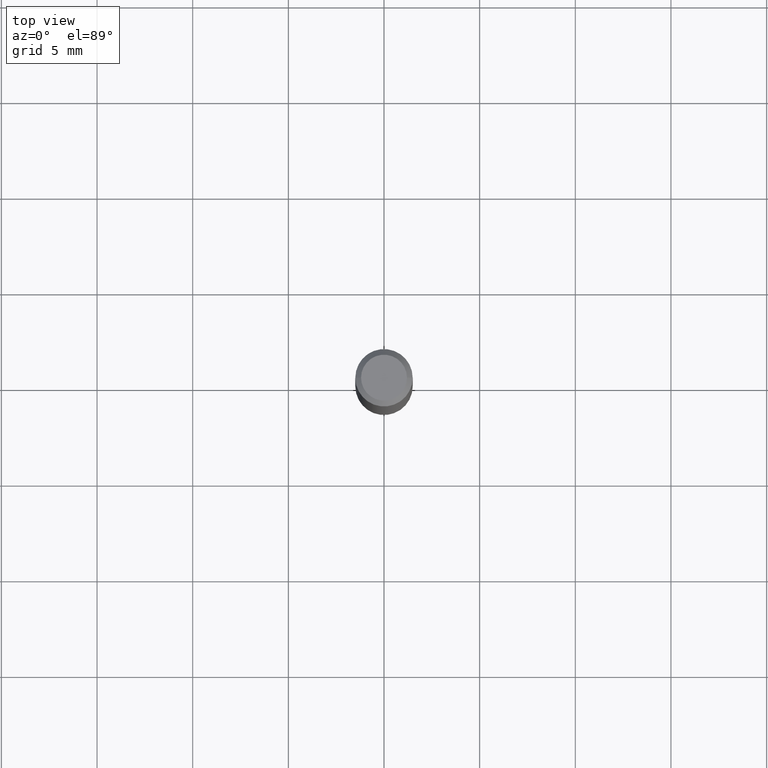
[diagram: clean part render]
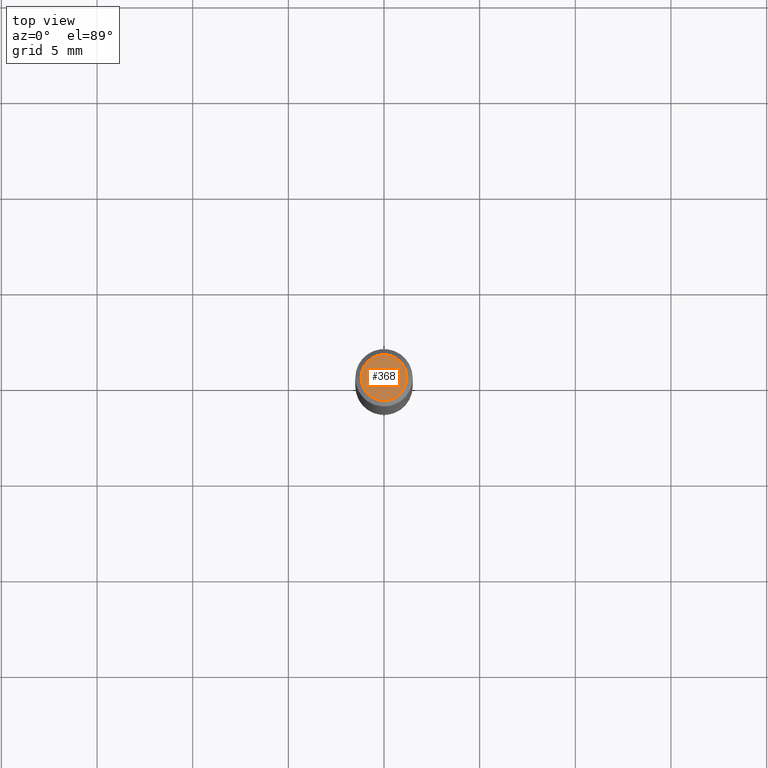
[diagram: same view with one face highlighted and labeled with its STEP entity id]
A machine part, top view. The second image highlights one B-rep face of the part: STEP entity #368.
In plain terms, the highlighted planar face has unit normal (0, -0, -1).
Its self-contained STEP definition (entity closure, byte-faithful):
#9 = DIRECTION ( 'NONE',  ( -1.000000000000000000, 6.982962677686265922E-15, -4.876176775795935793E-29 ) ) ;
#41 = CIRCLE ( 'NONE', #359, 0.04724000000000000421 ) ;
#116 = EDGE_LOOP ( 'NONE', ( #474, #483 ) ) ;
#140 = DIRECTION ( 'NONE',  ( -2.445468806185136597E-29, 3.491481338843145583E-15, 1.000000000000000000 ) ) ;
#144 = DIRECTION ( 'NONE',  ( -2.445468806185136597E-29, 3.491481338843145583E-15, 1.000000000000000000 ) ) ;
#145 = AXIS2_PLACEMENT_3D ( 'NONE', #364, #144, #242 ) ;
#175 = CARTESIAN_POINT ( 'NONE',  ( 8.265746106709734507E-48, -1.180129479067563789E-33, -3.380025165646692144E-19 ) ) ;
#190 = EDGE_CURVE ( 'NONE', #367, #481, #41, .T. ) ;
#202 = AXIS2_PLACEMENT_3D ( 'NONE', #386, #431, #9 ) ;
#236 = EDGE_CURVE ( 'NONE', #481, #367, #412, .T. ) ;
#242 = DIRECTION ( 'NONE',  ( 1.000000000000000000, -6.982962677686266711E-15, 4.876185090822587894E-29 ) ) ;
#315 = CARTESIAN_POINT ( 'NONE',  ( -0.04724000000000000421, 3.504923541997677355E-16, -3.380025165670481712E-19 ) ) ;
#341 = FACE_OUTER_BOUND ( 'NONE', #116, .T. ) ;
#359 = AXIS2_PLACEMENT_3D ( 'NONE', #175, #140, #479 ) ;
#364 = CARTESIAN_POINT ( 'NONE',  ( 8.265746106709734507E-48, -1.180129479067563789E-33, -3.380025165646692144E-19 ) ) ;
#367 = VERTEX_POINT ( 'NONE', #315 ) ;
#368 = ADVANCED_FACE ( 'NONE', ( #341 ), #471, .F. ) ;
#386 = CARTESIAN_POINT ( 'NONE',  ( 4.132873053354867254E-48, -5.900647395337818946E-34, -1.690012582823346072E-19 ) ) ;
#389 = CARTESIAN_POINT ( 'NONE',  ( 0.04724000000000000421, -3.852183633974369345E-16, -3.380025165621689721E-19 ) ) ;
#412 = CIRCLE ( 'NONE', #145, 0.04724000000000000421 ) ;
#431 = DIRECTION ( 'NONE',  ( 2.438088387897960049E-29, -3.491481338843145188E-15, -1.000000000000000000 ) ) ;
#471 = PLANE ( 'NONE',  #202 ) ;
#474 = ORIENTED_EDGE ( 'NONE', *, *, #190, .T. ) ;
#479 = DIRECTION ( 'NONE',  ( 1.000000000000000000, -6.982962677686266711E-15, 4.876185090822587894E-29 ) ) ;
#481 = VERTEX_POINT ( 'NONE', #389 ) ;
#483 = ORIENTED_EDGE ( 'NONE', *, *, #236, .T. ) ;